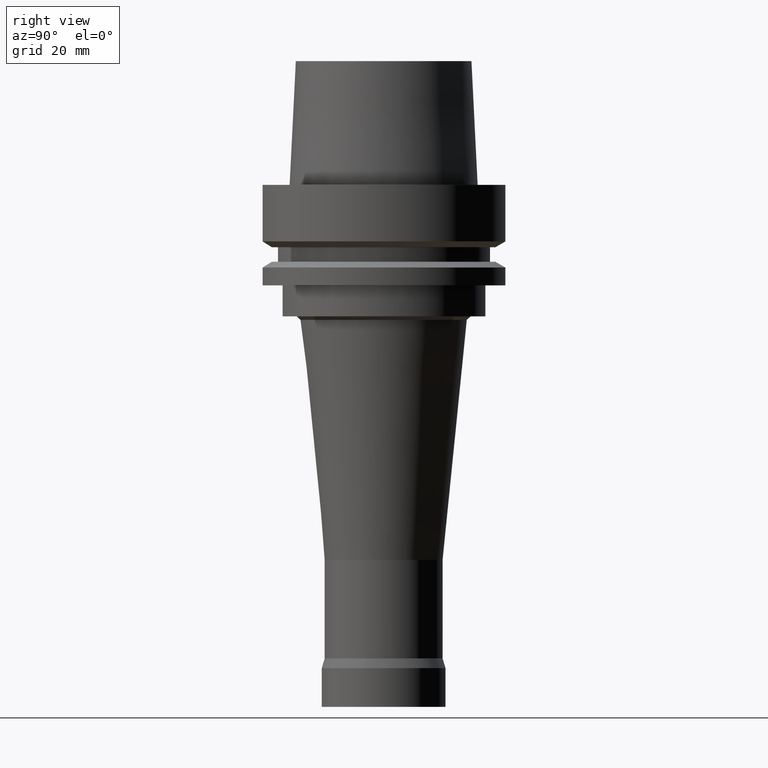
[diagram: clean part render]
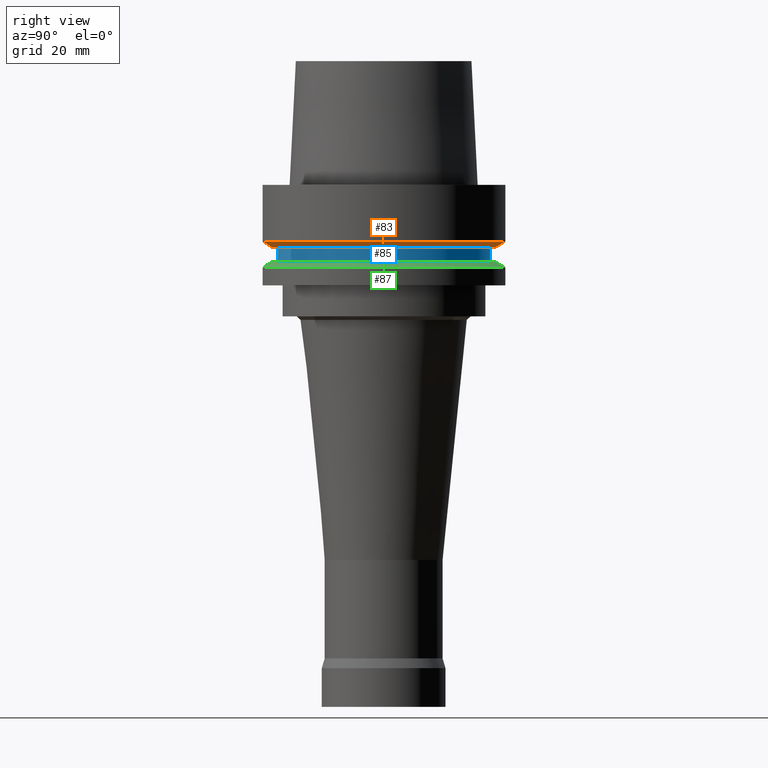
[diagram: same view with three faces highlighted in distinct colors, each labeled with its STEP entity id]
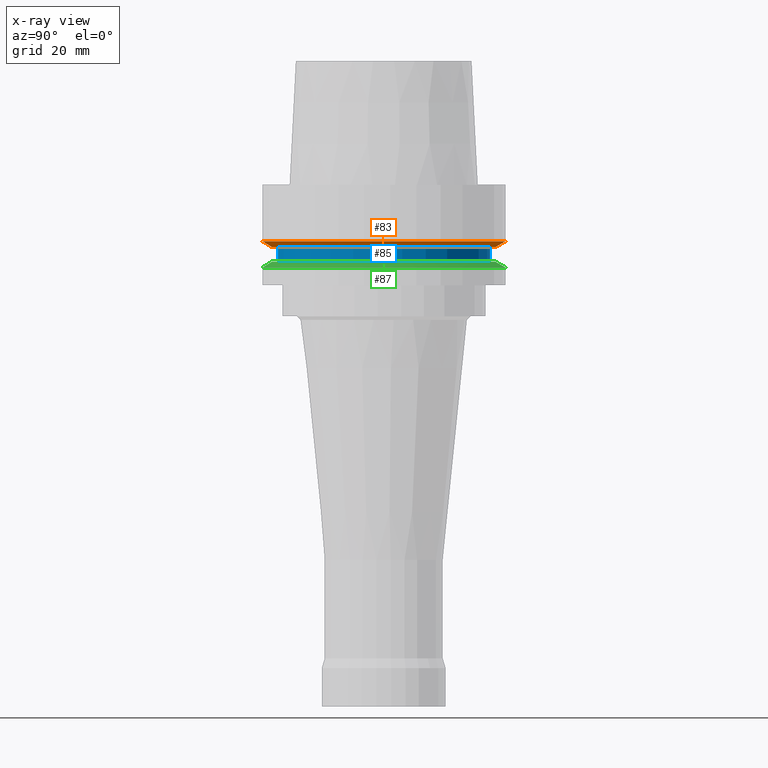
[diagram: x-ray of the same camera — body ghosted, the three highlighted faces saturated]
A machine part, right view with three faces highlighted in distinct colors.
The next image is the same camera in x-ray (body ghosted, the three faces saturated) — at least one of them is partly hidden behind the body in this view.
Their STEP definitions:

[orange] entity #83 — the highlighted conical surface has half-angle 60 deg.
#83=ADVANCED_FACE('',(#117,#118),#119,.T.);
#117=FACE_BOUND('',#172,.T.);
#118=FACE_BOUND('',#173,.T.);
#119=CONICAL_SURFACE('',#174,30.19879763,1.04719755326565);
#172=EDGE_LOOP('',(#243));
#173=EDGE_LOOP('',(#244));
#174=AXIS2_PLACEMENT_3D('',#245,#246,#247);
#243=ORIENTED_EDGE('',*,*,#306,.F.);
#244=ORIENTED_EDGE('',*,*,#305,.T.);
#245=CARTESIAN_POINT('',(9.41370714892619E-016,1.88274142978524E-015,-15.373750465));
#246=DIRECTION('',(-6.12323399573677E-017,-1.22464679914735E-016,1.0));
#247=DIRECTION('',(-1.23259516440783E-032,1.0,1.22464679914735E-016));
#305=EDGE_CURVE('',#330,#330,#331,.T.);
#306=EDGE_CURVE('',#332,#332,#333,.T.);
#330=VERTEX_POINT('',#366);
#331=CIRCLE('',#367,31.5);
#332=VERTEX_POINT('',#368);
#333=CIRCLE('',#369,28.89759526);
#366=CARTESIAN_POINT('',(8.95369947972684E-016,31.5,-14.62250093));
#367=AXIS2_PLACEMENT_3D('',#409,#410,#411);
#368=CARTESIAN_POINT('',(9.87371481812553E-016,28.89759526,-16.125));
#369=AXIS2_PLACEMENT_3D('',#412,#413,#414);
#409=CARTESIAN_POINT('',(8.95369947972685E-016,1.79073989594537E-015,-14.62250093));
#410=DIRECTION('',(6.12323399573677E-017,1.22464679914735E-016,-1.0));
#411=DIRECTION('',(-1.23259516440783E-032,1.0,1.22464679914735E-016));
#412=CARTESIAN_POINT('',(9.87371481812554E-016,1.97474296362511E-015,-16.125));
#413=DIRECTION('',(6.12323399573677E-017,1.22464679914735E-016,-1.0));
#414=DIRECTION('',(-1.23259516440783E-032,1.0,1.22464679914735E-016));

[blue] entity #85 — the highlighted cylindrical surface (bore or boss wall) has radius 27.5 mm, axis along (-0, -0, 1).
#85=ADVANCED_FACE('',(#123,#124),#125,.T.);
#123=FACE_BOUND('',#178,.T.);
#124=FACE_BOUND('',#179,.T.);
#125=CYLINDRICAL_SURFACE('',#180,27.5);
#178=EDGE_LOOP('',(#253));
#179=EDGE_LOOP('',(#254));
#180=AXIS2_PLACEMENT_3D('',#255,#256,#257);
#253=ORIENTED_EDGE('',*,*,#308,.F.);
#254=ORIENTED_EDGE('',*,*,#307,.T.);
#255=CARTESIAN_POINT('',(1.10218211923262E-015,2.20436423846524E-015,-18.0));
#256=DIRECTION('',(-6.12323399573677E-017,-1.22464679914735E-016,1.0));
#257=DIRECTION('',(-1.23259516440783E-032,1.0,1.22464679914735E-016));
#307=EDGE_CURVE('',#334,#334,#335,.T.);
#308=EDGE_CURVE('',#336,#336,#337,.T.);
#334=VERTEX_POINT('',#370);
#335=CIRCLE('',#371,27.5);
#336=VERTEX_POINT('',#372);
#337=CIRCLE('',#373,27.5);
#370=CARTESIAN_POINT('',(9.87371481812553E-016,27.5,-16.125));
#371=AXIS2_PLACEMENT_3D('',#415,#416,#417);
#372=CARTESIAN_POINT('',(1.21699275665268E-015,27.5,-19.875));
#373=AXIS2_PLACEMENT_3D('',#418,#419,#420);
#415=CARTESIAN_POINT('',(9.87371481812554E-016,1.97474296362511E-015,-16.125));
#416=DIRECTION('',(6.12323399573677E-017,1.22464679914735E-016,-1.0));
#417=DIRECTION('',(-1.23259516440783E-032,1.0,1.22464679914735E-016));
#418=CARTESIAN_POINT('',(1.21699275665268E-015,2.43398551330536E-015,-19.875));
#419=DIRECTION('',(6.12323399573677E-017,1.22464679914735E-016,-1.0));
#420=DIRECTION('',(-1.23259516440783E-032,1.0,1.22464679914735E-016));

[green] entity #87 — the highlighted conical surface has half-angle 60 deg.
#87=ADVANCED_FACE('',(#129,#130),#131,.T.);
#129=FACE_BOUND('',#184,.T.);
#130=FACE_BOUND('',#185,.T.);
#131=CONICAL_SURFACE('',#186,30.19879763,1.04719755326565);
#184=EDGE_LOOP('',(#263));
#185=EDGE_LOOP('',(#264));
#186=AXIS2_PLACEMENT_3D('',#265,#266,#267);
#263=ORIENTED_EDGE('',*,*,#310,.F.);
#264=ORIENTED_EDGE('',*,*,#309,.T.);
#265=CARTESIAN_POINT('',(1.26299352357262E-015,2.52598704714523E-015,-20.626249535));
#266=DIRECTION('',(6.12323399573677E-017,1.22464679914735E-016,-1.0));
#267=DIRECTION('',(-1.23259516440783E-032,1.0,1.22464679914735E-016));
#309=EDGE_CURVE('',#338,#338,#339,.T.);
#310=EDGE_CURVE('',#340,#340,#341,.T.);
#338=VERTEX_POINT('',#374);
#339=CIRCLE('',#375,28.89759526);
#340=VERTEX_POINT('',#376);
#341=CIRCLE('',#377,31.5);
#374=CARTESIAN_POINT('',(1.21699275665268E-015,28.89759526,-19.875));
#375=AXIS2_PLACEMENT_3D('',#421,#422,#423);
#376=CARTESIAN_POINT('',(1.30899429049255E-015,31.5,-21.37749907));
#377=AXIS2_PLACEMENT_3D('',#424,#425,#426);
#421=CARTESIAN_POINT('',(1.21699275665268E-015,2.43398551330536E-015,-19.875));
#422=DIRECTION('',(6.12323399573677E-017,1.22464679914735E-016,-1.0));
#423=DIRECTION('',(-1.23259516440783E-032,1.0,1.22464679914735E-016));
#424=CARTESIAN_POINT('',(1.30899429049255E-015,2.6179885809851E-015,-21.37749907));
#425=DIRECTION('',(6.12323399573677E-017,1.22464679914735E-016,-1.0));
#426=DIRECTION('',(-1.23259516440783E-032,1.0,1.22464679914735E-016));